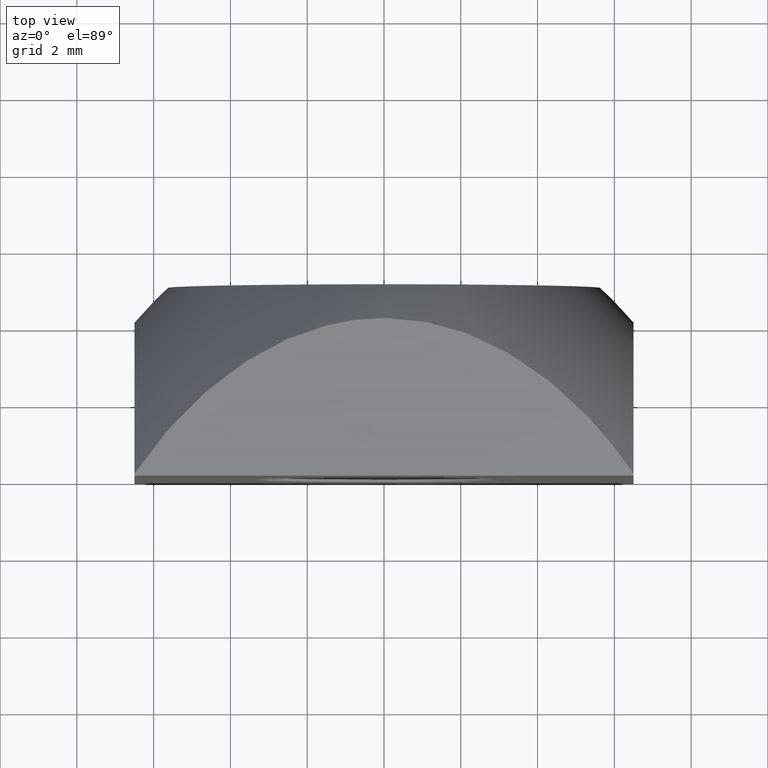
[diagram: clean part render]
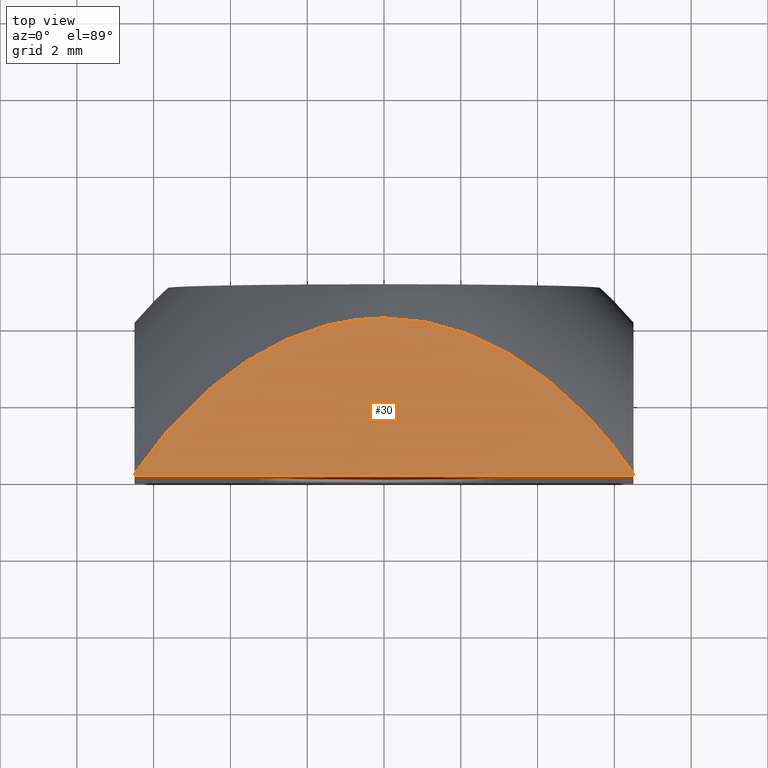
[diagram: same view with one face highlighted and labeled with its STEP entity id]
A machine part, top view. The second image highlights one B-rep face of the part: STEP entity #30.
In plain terms, the highlighted planar face has unit normal (0, 0, -1).
Its self-contained STEP definition (entity closure, byte-faithful):
#16 = EDGE_CURVE ( 'NONE', #226, #248, #53, .T. ) ;
#23 = EDGE_CURVE ( 'NONE', #248, #265, #58, .T. ) ;
#30 = ADVANCED_FACE ( 'NONE', ( #176 ), #342, .F. ) ;
#39 = EDGE_CURVE ( 'NONE', #226, #295, #397, .T. ) ;
#40 = EDGE_CURVE ( 'NONE', #265, #131, #323, .T. ) ;
#45 = EDGE_CURVE ( 'NONE', #295, #131, #368, .T. ) ;
#53 = B_SPLINE_CURVE_WITH_KNOTS ( 'NONE', 3,
 ( #213, #294, #422, #173, #230, #264, #398, #126, #220, #202, #153, #393 ),
 .UNSPECIFIED., .F., .F.,
 ( 4, 2, 2, 2, 2, 4 ),
 ( 0.05469827054856388200, 0.05668888045020870100, 0.05867949035185351900, 0.05967479530267592900, 0.06067010025349833800, 0.06266071015514315700 ),
 .UNSPECIFIED. ) ;
#58 = B_SPLINE_CURVE_WITH_KNOTS ( 'NONE', 3,
 ( #306, #167, #143, #396, #287, #210, #447, #445, #259, #327, #132, #444 ),
 .UNSPECIFIED., .F., .F.,
 ( 4, 2, 2, 2, 2, 4 ),
 ( 7.740424289688171000E-019, 0.001990046668963452900, 0.003980093337926904900, 0.004975116672408631300, 0.005970140006890356000, 0.007960186675853809700 ),
 .UNSPECIFIED. ) ;
#65 = VECTOR ( 'NONE', #280, 1000.000000000000000 ) ;
#73 = VECTOR ( 'NONE', #367, 1000.000000000000000 ) ;
#87 = VECTOR ( 'NONE', #371, 1000.000000000000000 ) ;
#111 = AXIS2_PLACEMENT_3D ( 'NONE', #399, #311, #317 ) ;
#126 = CARTESIAN_POINT ( 'NONE',  ( -2.579949745945144800, 3.540641047558074300, 6.500000000000001800 ) ) ;
#131 = VERTEX_POINT ( 'NONE', #187 ) ;
#132 = CARTESIAN_POINT ( 'NONE',  ( 6.128323188261370000, 0.6063366316385198100, 6.499999999999999100 ) ) ;
#139 = ORIENTED_EDGE ( 'NONE', *, *, #45, .T. ) ;
#143 = CARTESIAN_POINT ( 'NONE',  ( 1.326264826254138100, 3.993687183243997300, 6.500000000000001800 ) ) ;
#153 = CARTESIAN_POINT ( 'NONE',  ( -0.6728908548416628900, 4.109735237956652300, 6.500000000000000900 ) ) ;
#167 = CARTESIAN_POINT ( 'NONE',  ( 0.6727004638865451400, 4.109735237956653200, 6.500000000000001800 ) ) ;
#171 = ORIENTED_EDGE ( 'NONE', *, *, #16, .F. ) ;
#173 = CARTESIAN_POINT ( 'NONE',  ( -4.797843221465107900, 2.074270503709186200, 6.500000000000000000 ) ) ;
#176 = FACE_OUTER_BOUND ( 'NONE', #297, .T. ) ;
#187 = CARTESIAN_POINT ( 'NONE',  ( 6.500000000000000000, 0.0000000000000000000, 6.500000000000000900 ) ) ;
#199 = CARTESIAN_POINT ( 'NONE',  ( -6.500000000000093300, 0.05089004898344541600, 6.500000000000000900 ) ) ;
#202 = CARTESIAN_POINT ( 'NONE',  ( -1.324089535981870500, 3.993502740051847200, 6.500000000000001800 ) ) ;
#210 = CARTESIAN_POINT ( 'NONE',  ( 4.012227267387110900, 2.697749916528785700, 6.500000000000001800 ) ) ;
#213 = CARTESIAN_POINT ( 'NONE',  ( -6.500000000000093300, 0.05089004898344541600, 6.500000000000000900 ) ) ;
#215 = CARTESIAN_POINT ( 'NONE',  ( 6.500000000000000000, 0.05089004898344110000, 6.500000000000096800 ) ) ;
#220 = CARTESIAN_POINT ( 'NONE',  ( -2.268669397716684100, 3.673102568464421000, 6.500000000000000000 ) ) ;
#226 = VERTEX_POINT ( 'NONE', #199 ) ;
#230 = CARTESIAN_POINT ( 'NONE',  ( -4.284615633495739900, 2.514295792640039600, 6.500000000000000000 ) ) ;
#248 = VERTEX_POINT ( 'NONE', #414 ) ;
#259 = CARTESIAN_POINT ( 'NONE',  ( 5.027364923004412800, 1.836211336588453600, 6.500000000000000900 ) ) ;
#264 = CARTESIAN_POINT ( 'NONE',  ( -3.459394421651953900, 3.070451726834651800, 6.500000000000000900 ) ) ;
#265 = VERTEX_POINT ( 'NONE', #215 ) ;
#269 = CARTESIAN_POINT ( 'NONE',  ( -6.500000000000000000, 0.0000000000000000000, 6.500000000000000900 ) ) ;
#280 = DIRECTION ( 'NONE',  ( -0.0000000000000000000, -1.000000000000000000, -0.0000000000000000000 ) ) ;
#287 = CARTESIAN_POINT ( 'NONE',  ( 3.185363310006315500, 3.255375731933069200, 6.500000000000002700 ) ) ;
#291 = CARTESIAN_POINT ( 'NONE',  ( -6.500000000000000000, 0.0000000000000000000, 6.500000000000000900 ) ) ;
#294 = CARTESIAN_POINT ( 'NONE',  ( -6.130557881894620000, 0.6029970287828481100, 6.500000000000000000 ) ) ;
#295 = VERTEX_POINT ( 'NONE', #269 ) ;
#297 = EDGE_LOOP ( 'NONE', ( #171, #402, #139, #425, #401 ) ) ;
#306 = CARTESIAN_POINT ( 'NONE',  ( 7.960204194457799400E-016, 4.109735237956652300, 6.500000000000000900 ) ) ;
#311 = DIRECTION ( 'NONE',  ( 0.0000000000000000000, 0.0000000000000000000, -1.000000000000000000 ) ) ;
#317 = DIRECTION ( 'NONE',  ( -1.000000000000000000, 0.0000000000000000000, -0.0000000000000000000 ) ) ;
#323 = LINE ( 'NONE', #376, #73 ) ;
#327 = CARTESIAN_POINT ( 'NONE',  ( 5.715148467929195100, 1.123431959365039700, 6.499999999999999100 ) ) ;
#342 = PLANE ( 'NONE',  #111 ) ;
#362 = CARTESIAN_POINT ( 'NONE',  ( -6.500000000000000000, 5.000000000000000000, 6.500000000000000900 ) ) ;
#367 = DIRECTION ( 'NONE',  ( -0.0000000000000000000, -1.000000000000000000, -0.0000000000000000000 ) ) ;
#368 = LINE ( 'NONE', #291, #87 ) ;
#371 = DIRECTION ( 'NONE',  ( 1.000000000000000000, 0.0000000000000000000, 0.0000000000000000000 ) ) ;
#376 = CARTESIAN_POINT ( 'NONE',  ( 6.500000000000000000, 5.000000000000000000, 6.500000000000000900 ) ) ;
#393 = CARTESIAN_POINT ( 'NONE',  ( 7.960204194457799400E-016, 4.109735237956652300, 6.500000000000000900 ) ) ;
#396 = CARTESIAN_POINT ( 'NONE',  ( 2.597829809248621400, 3.560517489800200300, 6.500000000000001800 ) ) ;
#397 = LINE ( 'NONE', #362, #65 ) ;
#398 = CARTESIAN_POINT ( 'NONE',  ( -3.174080856937323800, 3.239602677233719000, 6.500000000000000900 ) ) ;
#399 = CARTESIAN_POINT ( 'NONE',  ( -6.500000000000000000, 5.000000000000000000, 6.500000000000000900 ) ) ;
#401 = ORIENTED_EDGE ( 'NONE', *, *, #23, .F. ) ;
#402 = ORIENTED_EDGE ( 'NONE', *, *, #39, .T. ) ;
#414 = CARTESIAN_POINT ( 'NONE',  ( 7.960204194457799400E-016, 4.109735237956652300, 6.500000000000000900 ) ) ;
#422 = CARTESIAN_POINT ( 'NONE',  ( -5.718393653599532600, 1.119872145102291300, 6.500000000000001800 ) ) ;
#425 = ORIENTED_EDGE ( 'NONE', *, *, #40, .F. ) ;
#444 = CARTESIAN_POINT ( 'NONE',  ( 6.500000000000000000, 0.05089004898344110000, 6.500000000000096800 ) ) ;
#445 = CARTESIAN_POINT ( 'NONE',  ( 4.786672189913906200, 2.063239728859763000, 6.500000000000001800 ) ) ;
#447 = CARTESIAN_POINT ( 'NONE',  ( 4.279733229958324600, 2.493680659320124600, 6.500000000000000000 ) ) ;